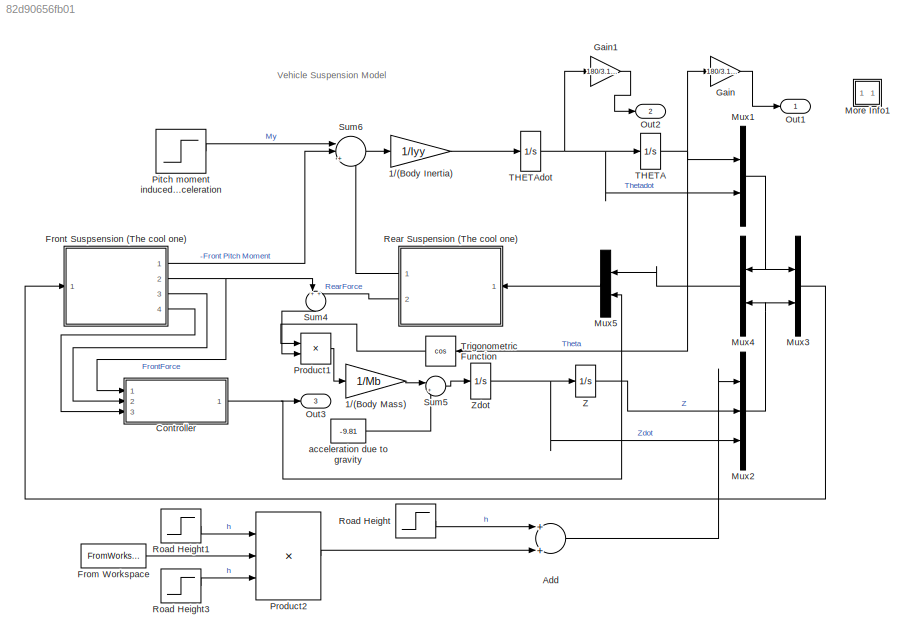
MODEL slx_82d90656fb01
KIND model
CONFIG AbsTol = auto
CONFIG EnableMultiTasking = off
CONFIG FixedStep = 0.005
CONFIG MaxStep = auto
CONFIG MinStep = auto
CONFIG RelTol = 1e-3
CONFIG SampleTimeConstraint = Unconstrained
CONFIG Solver = FixedStepAuto
CONFIG SolverName = FixedStepAuto
CONFIG StartTime = 0.0
CONFIG StopFcn = Project_Simulink_Plotz_April15
CONFIG StopTime = 6
BLOCK [Gain] 1//(Body Inertia)
  Gain = 1/Iyy
BLOCK [Gain] 1//(Body Mass)
  Gain = 1/Mb
BLOCK [Sum] Add
  InputSameDT = off
  OutDataTypeStr = Inherit: Inherit via internal rule
  Ports = [2, 1]
  SaturateOnIntegerOverflow = off
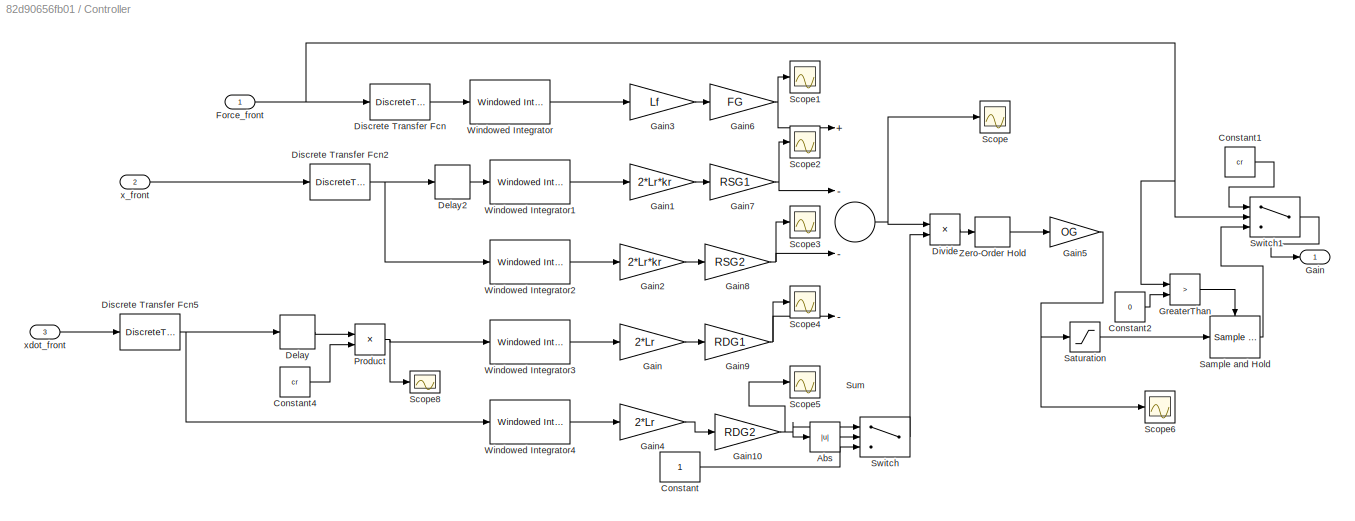
BLOCK [SubSystem] Controller
  Ports = [3, 1]
  RequestExecContextInheritance = off
BLOCK [Abs] Controller/Abs
  SaturateOnIntegerOverflow = off
BLOCK [Constant] Controller/Constant
BLOCK [Constant] Controller/Constant1
  Value = cr
BLOCK [Constant] Controller/Constant2
  Value = 0
BLOCK [Constant] Controller/Constant4
  Value = cr
BLOCK [Delay] Controller/Delay
  DelayLength = floor(L/(Ts*V))
  InputPortMap = u0
  Ports = [1, 1]
  SampleTime = Ts
BLOCK [Delay] Controller/Delay2
  DelayLength = floor(L/(Ts*V))
  InputPortMap = u0
  Ports = [1, 1]
  SampleTime = Ts
BLOCK [DiscreteTransferFcn] Controller/Discrete Transfer Fcn
  Denominator = [1]
  InputPortMap = u0
  Ports = [1, 1]
  SampleTime = Ts
BLOCK [DiscreteTransferFcn] Controller/Discrete Transfer Fcn2
  Denominator = [1]
  InputPortMap = u0
  Ports = [1, 1]
  SampleTime = Ts
BLOCK [DiscreteTransferFcn] Controller/Discrete Transfer Fcn5
  Denominator = [1]
  InputPortMap = u0
  Ports = [1, 1]
  SampleTime = Ts
BLOCK [Product] Controller/Divide
  InputSameDT = off
  Inputs = */
  OutDataTypeStr = Inherit: Inherit via internal rule
  Ports = [2, 1]
  RndMeth = Floor
  SaturateOnIntegerOverflow = off
BLOCK [Inport] Controller/Force_front
  IconDisplay = Port number
BLOCK [Gain] Controller/Gain
  Gain = 2*Lr
  OutDataTypeStr = Inherit: Inherit via internal rule
  ParamDataTypeStr = Inherit: Inherit via internal rule
  SaturateOnIntegerOverflow = off
BLOCK [Outport] Controller/Gain 
  IconDisplay = Port number
BLOCK [Gain] Controller/Gain1
  Gain = 2*Lr*kr
  OutDataTypeStr = Inherit: Inherit via internal rule
  ParamDataTypeStr = Inherit: Inherit via internal rule
  SaturateOnIntegerOverflow = off
BLOCK [Gain] Controller/Gain10
  Gain = RDG2
  OutDataTypeStr = Inherit: Inherit via internal rule
  ParamDataTypeStr = Inherit: Inherit via internal rule
  SaturateOnIntegerOverflow = off
BLOCK [Gain] Controller/Gain2
  Gain = 2*Lr*kr
  OutDataTypeStr = Inherit: Inherit via internal rule
  ParamDataTypeStr = Inherit: Inherit via internal rule
  SaturateOnIntegerOverflow = off
BLOCK [Gain] Controller/Gain3
  Gain = Lf
  OutDataTypeStr = Inherit: Inherit via internal rule
  ParamDataTypeStr = Inherit: Inherit via internal rule
  SaturateOnIntegerOverflow = off
BLOCK [Gain] Controller/Gain4
  Gain = 2*Lr
  OutDataTypeStr = Inherit: Inherit via internal rule
  ParamDataTypeStr = Inherit: Inherit via internal rule
  SaturateOnIntegerOverflow = off
BLOCK [Gain] Controller/Gain5
  Gain = OG
  OutDataTypeStr = Inherit: Inherit via internal rule
  ParamDataTypeStr = Inherit: Inherit via internal rule
  SaturateOnIntegerOverflow = off
BLOCK [Gain] Controller/Gain6
  Gain = FG
  OutDataTypeStr = Inherit: Inherit via internal rule
  ParamDataTypeStr = Inherit: Inherit via internal rule
  SaturateOnIntegerOverflow = off
BLOCK [Gain] Controller/Gain7
  Gain = RSG1
  OutDataTypeStr = Inherit: Inherit via internal rule
  ParamDataTypeStr = Inherit: Inherit via internal rule
  SaturateOnIntegerOverflow = off
BLOCK [Gain] Controller/Gain8
  Gain = RSG2
  OutDataTypeStr = Inherit: Inherit via internal rule
  ParamDataTypeStr = Inherit: Inherit via internal rule
  SaturateOnIntegerOverflow = off
BLOCK [Gain] Controller/Gain9
  Gain = RDG1
  OutDataTypeStr = Inherit: Inherit via internal rule
  ParamDataTypeStr = Inherit: Inherit via internal rule
  SaturateOnIntegerOverflow = off
BLOCK [RelationalOperator] Controller/GreaterThan
  InputSameDT = off
  Operator = >
  OutDataTypeStr = boolean
  Ports = [2, 1]
  RndMeth = Simplest
BLOCK [Product] Controller/Product
  InputSameDT = off
  OutDataTypeStr = Inherit: Inherit via internal rule
  Ports = [2, 1]
  RndMeth = Floor
  SaturateOnIntegerOverflow = off
BLOCK [Reference] Controller/Sample and Hold  REF=dspsigops/Sample
and Hold
  Ports = [1, 1, 0, 1]
  SourceBlock = dspsigops/Sample\nand Hold
  SourceProductBaseCode = DS
  SourceProductName = DSP System Toolbox
  SourceType = Sample and Hold
BLOCK [Saturate] Controller/Saturation
  InputPortMap = u0
  LowerLimit = 750
  Ports = [1, 1]
  UpperLimit = 750
BLOCK [Scope] Controller/Scope
  Floating = off
  NumInputPorts = 1
  Ports = [1]
  ScopeSpecificationString = Simulink.scopes.TimeScopeBlockCfg('CurrentConfiguration', extmgr.ConfigurationSet(extmgr.Configuration('Core','General UI',true),extmgr.Configuration('Core','Source UI',true),extmgr.Configuration('Sources','WiredSimulink',true,'DataLoggingVariableName','ScopeData1'),extmgr.Configuration('Visuals','Time Domain',true,'SerializedDisplays',{struct('MinYLimReal','-294175.10053','MaxYLimReal','244477.63...<+1429ch>
BLOCK [Scope] Controller/Scope1
  Floating = off
  NumInputPorts = 1
  Ports = [1]
  ScopeSpecificationString = Simulink.scopes.TimeScopeBlockCfg('CurrentConfiguration', extmgr.ConfigurationSet(extmgr.Configuration('Core','General UI',true),extmgr.Configuration('Core','Source UI',true),extmgr.Configuration('Sources','WiredSimulink',true,'DataLoggingVariableName','ScopeData1'),extmgr.Configuration('Visuals','Time Domain',true,'SerializedDisplays',{struct('MinYLimReal','-37143.39112','MaxYLimReal','334290.520...<+1428ch>
BLOCK [Scope] Controller/Scope2
  Floating = off
  NumInputPorts = 1
  Ports = [1]
  ScopeSpecificationString = Simulink.scopes.TimeScopeBlockCfg('CurrentConfiguration', extmgr.ConfigurationSet(extmgr.Configuration('Core','General UI',true),extmgr.Configuration('Core','Source UI',true),extmgr.Configuration('Sources','WiredSimulink',true,'DataLoggingVariableName','ScopeData2'),extmgr.Configuration('Visuals','Time Domain',true,'SerializedDisplays',{struct('MinYLimReal','-19367.81493','MaxYLimReal','174310.334...<+1428ch>
BLOCK [Scope] Controller/Scope3
  Floating = off
  NumInputPorts = 1
  Ports = [1]
  ScopeSpecificationString = Simulink.scopes.TimeScopeBlockCfg('CurrentConfiguration', extmgr.ConfigurationSet(extmgr.Configuration('Core','General UI',true),extmgr.Configuration('Core','Source UI',true),extmgr.Configuration('Sources','WiredSimulink',true,'DataLoggingVariableName','ScopeData3'),extmgr.Configuration('Visuals','Time Domain',true,'SerializedDisplays',{struct('MinYLimReal','-19367.81493','MaxYLimReal','174310.334...<+1428ch>
BLOCK [Scope] Controller/Scope4
  Floating = off
  NumInputPorts = 1
  Ports = [1]
  ScopeSpecificationString = Simulink.scopes.TimeScopeBlockCfg('CurrentConfiguration', extmgr.ConfigurationSet(extmgr.Configuration('Core','General UI',true),extmgr.Configuration('Core','Source UI',true),extmgr.Configuration('Sources','WiredSimulink',true,'DataLoggingVariableName','ScopeData4'),extmgr.Configuration('Visuals','Time Domain',true,'SerializedDisplays',{struct('MinYLimReal','-48928.34129','MaxYLimReal','88455.0715...<+1425ch>
BLOCK [Scope] Controller/Scope5
  Floating = off
  NumInputPorts = 1
  Ports = [1]
  ScopeSpecificationString = Simulink.scopes.TimeScopeBlockCfg('CurrentConfiguration', extmgr.ConfigurationSet(extmgr.Configuration('Core','General UI',true),extmgr.Configuration('Core','Source UI',true),extmgr.Configuration('Sources','WiredSimulink',true,'DataLoggingVariableName','ScopeData5'),extmgr.Configuration('Visuals','Time Domain',true,'SerializedDisplays',{struct('MinYLimReal','-163.09447','MaxYLimReal','294.85024','...<+1410ch>
BLOCK [Scope] Controller/Scope6
  Floating = off
  NumInputPorts = 1
  Ports = [1]
  ScopeSpecificationString = Simulink.scopes.TimeScopeBlockCfg('CurrentConfiguration', extmgr.ConfigurationSet(extmgr.Configuration('Core','General UI',true),extmgr.Configuration('Core','Source UI',true),extmgr.Configuration('Sources','WiredSimulink',true,'DataLoggingVariableName','ScopeData6'),extmgr.Configuration('Visuals','Time Domain',true),extmgr.Configuration('Tools','Plot Navigation',true),extmgr.Configuration('Tools',...<+40ch>
BLOCK [Scope] Controller/Scope8
  Floating = off
  NumInputPorts = 1
  Ports = [1]
  ScopeSpecificationString = Simulink.scopes.TimeScopeBlockCfg('CurrentConfiguration', extmgr.ConfigurationSet(extmgr.Configuration('Core','General UI',true),extmgr.Configuration('Core','Source UI',true),extmgr.Configuration('Sources','WiredSimulink',true,'DataLoggingVariableName','ScopeData4'),extmgr.Configuration('Visuals','Time Domain',true,'SerializedDisplays',{struct('MinYLimReal','-4090.27016','MaxYLimReal','4007.1436',...<+1416ch>
BLOCK [Sum] Controller/Sum
  InputSameDT = off
  Inputs = +---
  OutDataTypeStr = Inherit: Inherit via internal rule
  Ports = [4, 1]
  SaturateOnIntegerOverflow = off
BLOCK [Switch] Controller/Switch
  Criteria = u2 > Threshold
  InputSameDT = off
  SaturateOnIntegerOverflow = off
  Threshold = 1
BLOCK [Switch] Controller/Switch1
  Criteria = u2 > Threshold
  InputSameDT = off
  SaturateOnIntegerOverflow = off
BLOCK [Reference] Controller/Windowed Integrator  REF=commfilt2/Windowed
Integrator
  Ports = [1, 1]
  SourceBlock = commfilt2/Windowed\nIntegrator
  SourceProductBaseCode = CM
  SourceProductName = Communications Toolbox
  SourceType = Windowed Integrator
  UserDataPersistent = on
BLOCK [Reference] Controller/Windowed Integrator1  REF=commfilt2/Windowed
Integrator
  Ports = [1, 1]
  SourceBlock = commfilt2/Windowed\nIntegrator
  SourceProductBaseCode = CM
  SourceProductName = Communications Toolbox
  SourceType = Windowed Integrator
  UserDataPersistent = on
BLOCK [Reference] Controller/Windowed Integrator2  REF=commfilt2/Windowed
Integrator
  Ports = [1, 1]
  SourceBlock = commfilt2/Windowed\nIntegrator
  SourceProductBaseCode = CM
  SourceProductName = Communications Toolbox
  SourceType = Windowed Integrator
  UserDataPersistent = on
BLOCK [Reference] Controller/Windowed Integrator3  REF=commfilt2/Windowed
Integrator
  Ports = [1, 1]
  SourceBlock = commfilt2/Windowed\nIntegrator
  SourceProductBaseCode = CM
  SourceProductName = Communications Toolbox
  SourceType = Windowed Integrator
  UserDataPersistent = on
BLOCK [Reference] Controller/Windowed Integrator4  REF=commfilt2/Windowed
Integrator
  Ports = [1, 1]
  SourceBlock = commfilt2/Windowed\nIntegrator
  SourceProductBaseCode = CM
  SourceProductName = Communications Toolbox
  SourceType = Windowed Integrator
  UserDataPersistent = on
BLOCK [ZeroOrderHold] Controller/Zero-Order Hold
  SampleTime = Ts
BLOCK [Inport] Controller/x_front
  IconDisplay = Port number
  Port = 2
BLOCK [Inport] Controller/xdot_front
  IconDisplay = Port number
  Port = 3
BLOCK [FromWorkspace] From Workspace
  OutputAfterFinalValue = Holding final value
  VariableName = RampMat
  ZeroCross = on
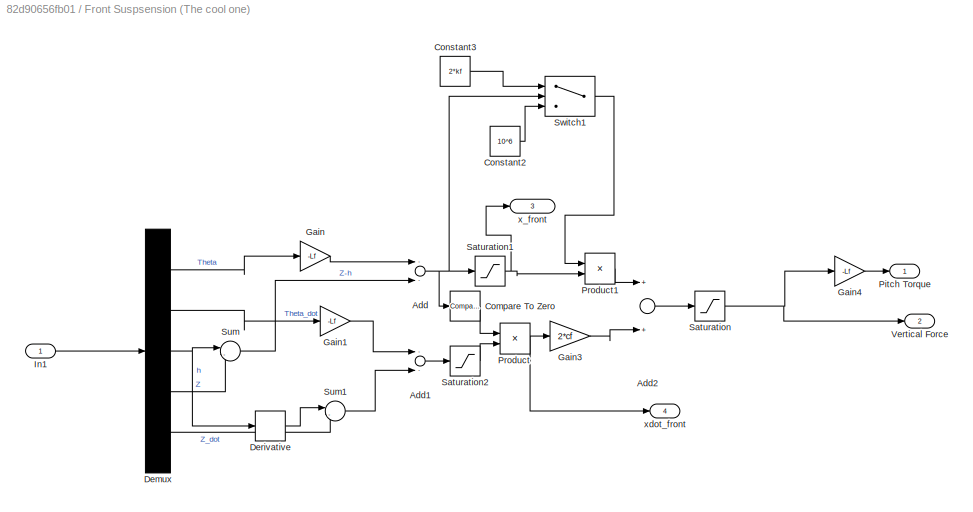
BLOCK [SubSystem] Front Suspsension (The cool one)
  Ports = [1, 4]
  RequestExecContextInheritance = off
BLOCK [Sum] Front Suspsension (The cool one)/Add
  InputSameDT = off
  Inputs = --
  OutDataTypeStr = Inherit: Inherit via internal rule
  Ports = [2, 1]
  SaturateOnIntegerOverflow = off
BLOCK [Sum] Front Suspsension (The cool one)/Add1
  InputSameDT = off
  Inputs = --
  OutDataTypeStr = Inherit: Inherit via internal rule
  Ports = [2, 1]
  SaturateOnIntegerOverflow = off
BLOCK [Sum] Front Suspsension (The cool one)/Add2
  InputSameDT = off
  OutDataTypeStr = Inherit: Inherit via internal rule
  Ports = [2, 1]
  SaturateOnIntegerOverflow = off
BLOCK [Reference] Front Suspsension (The cool one)/Compare To Zero  REF=simulink/Logic and Bit
Operations/Compare
To Zero
  Ports = [1, 1]
  SourceBlock = simulink/Logic and Bit\nOperations/Compare\nTo Zero
  SourceProductBaseCode = SL
  SourceProductName = Simulink
  SourceType = Compare To Zero
BLOCK [Constant] Front Suspsension (The cool one)/Constant2
  Value = 10^6
BLOCK [Constant] Front Suspsension (The cool one)/Constant3
  Value = 2*kf
BLOCK [Demux] Front Suspsension (The cool one)/Demux
  DisplayOption = bar
  Outputs = 5
  Ports = [1, 5]
BLOCK [Derivative] Front Suspsension (The cool one)/Derivative
BLOCK [Gain] Front Suspsension (The cool one)/Gain
  Gain = -Lf
  OutDataTypeStr = Inherit: Inherit via internal rule
  ParamDataTypeStr = Inherit: Inherit via internal rule
  SaturateOnIntegerOverflow = off
BLOCK [Gain] Front Suspsension (The cool one)/Gain1
  Gain = -Lf
  OutDataTypeStr = Inherit: Inherit via internal rule
  ParamDataTypeStr = Inherit: Inherit via internal rule
  SaturateOnIntegerOverflow = off
BLOCK [Gain] Front Suspsension (The cool one)/Gain3
  Gain = 2*cf
  OutDataTypeStr = Inherit: Inherit via internal rule
  ParamDataTypeStr = Inherit: Inherit via internal rule
  SaturateOnIntegerOverflow = off
BLOCK [Gain] Front Suspsension (The cool one)/Gain4
  Gain = -Lf
  OutDataTypeStr = Inherit: Inherit via internal rule
  ParamDataTypeStr = Inherit: Inherit via internal rule
  SaturateOnIntegerOverflow = off
BLOCK [Inport] Front Suspsension (The cool one)/In1
  IconDisplay = Port number
BLOCK [Outport] Front Suspsension (The cool one)/Pitch Torque
  IconDisplay = Port number
  VectorParamsAs1DForOutWhenUnconnected = off
BLOCK [Product] Front Suspsension (The cool one)/Product
  InputSameDT = off
  OutDataTypeStr = Inherit: Inherit via internal rule
  Ports = [2, 1]
  RndMeth = Floor
  SaturateOnIntegerOverflow = off
BLOCK [Product] Front Suspsension (The cool one)/Product1
  InputSameDT = off
  OutDataTypeStr = Inherit: Inherit via internal rule
  Ports = [2, 1]
  RndMeth = Floor
  SaturateOnIntegerOverflow = off
BLOCK [Saturate] Front Suspsension (The cool one)/Saturation
  InputPortMap = u0
  LowerLimit = 0
  Ports = [1, 1]
  UpperLimit = inf
BLOCK [Saturate] Front Suspsension (The cool one)/Saturation1
  InputPortMap = u0
  LowerLimit = 0
  Ports = [1, 1]
  UpperLimit = inf
BLOCK [Saturate] Front Suspsension (The cool one)/Saturation2
  InputPortMap = u0
  LowerLimit = -5
  Ports = [1, 1]
  UpperLimit = inf
BLOCK [Sum] Front Suspsension (The cool one)/Sum
  IconShape = round
  InputSameDT = off
  Inputs = |-+
  OutDataTypeStr = Inherit: Inherit via internal rule
  Ports = [2, 1]
  SaturateOnIntegerOverflow = off
BLOCK [Sum] Front Suspsension (The cool one)/Sum1
  IconShape = round
  InputSameDT = off
  Inputs = |-+
  OutDataTypeStr = Inherit: Inherit via internal rule
  Ports = [2, 1]
  SaturateOnIntegerOverflow = off
BLOCK [Switch] Front Suspsension (The cool one)/Switch1
  Criteria = u2 > Threshold
  InputSameDT = off
  SaturateOnIntegerOverflow = off
  Threshold = -0.4
BLOCK [Outport] Front Suspsension (The cool one)/Vertical Force
  IconDisplay = Port number
  Port = 2
  VectorParamsAs1DForOutWhenUnconnected = off
BLOCK [Outport] Front Suspsension (The cool one)/x_front
  IconDisplay = Port number
  Port = 3
  VectorParamsAs1DForOutWhenUnconnected = off
BLOCK [Outport] Front Suspsension (The cool one)/xdot_front
  IconDisplay = Port number
  Port = 4
  VectorParamsAs1DForOutWhenUnconnected = off
BLOCK [Gain] Gain
  Gain = 180/3.1415
  OutDataTypeStr = Inherit: Inherit via internal rule
  ParamDataTypeStr = Inherit: Inherit via internal rule
  SaturateOnIntegerOverflow = off
BLOCK [Gain] Gain1
  Gain = 180/3.1415
  OutDataTypeStr = Inherit: Inherit via internal rule
  ParamDataTypeStr = Inherit: Inherit via internal rule
  SaturateOnIntegerOverflow = off
BLOCK [SubSystem] More Info1
  OpenFcn = showdemo(bdroot(gcb))
  Ports = []
  RequestExecContextInheritance = off
BLOCK [Mux] Mux1
  DisplayOption = signals
  Inputs = 2
  Ports = [2, 1]
BLOCK [Mux] Mux2
  DisplayOption = signals
  Inputs = 3
  Ports = [3, 1]
BLOCK [Mux] Mux3
  DisplayOption = signals
  Inputs = 2
  Ports = [2, 1]
BLOCK [Mux] Mux4
  DisplayOption = signals
  Inputs = 2
  Ports = [2, 1]
BLOCK [Mux] Mux5
  DisplayOption = signals
  Inputs = 2
  Ports = [2, 1]
BLOCK [Outport] Out1
  IconDisplay = Port number
BLOCK [Outport] Out2
  IconDisplay = Port number
  Port = 2
BLOCK [Outport] Out3
  IconDisplay = Port number
  Port = 3
BLOCK [Step] Pitch moment induced by vehicle acceleration
  After = 0
  SampleTime = 0
  Time = 3
BLOCK [Product] Product1
  InputSameDT = off
  OutDataTypeStr = Inherit: Inherit via internal rule
  Ports = [2, 1]
  RndMeth = Floor
  SaturateOnIntegerOverflow = off
BLOCK [Product] Product2
  InputSameDT = off
  Inputs = 3
  OutDataTypeStr = Inherit: Inherit via internal rule
  Ports = [3, 1]
  RndMeth = Floor
  SaturateOnIntegerOverflow = off
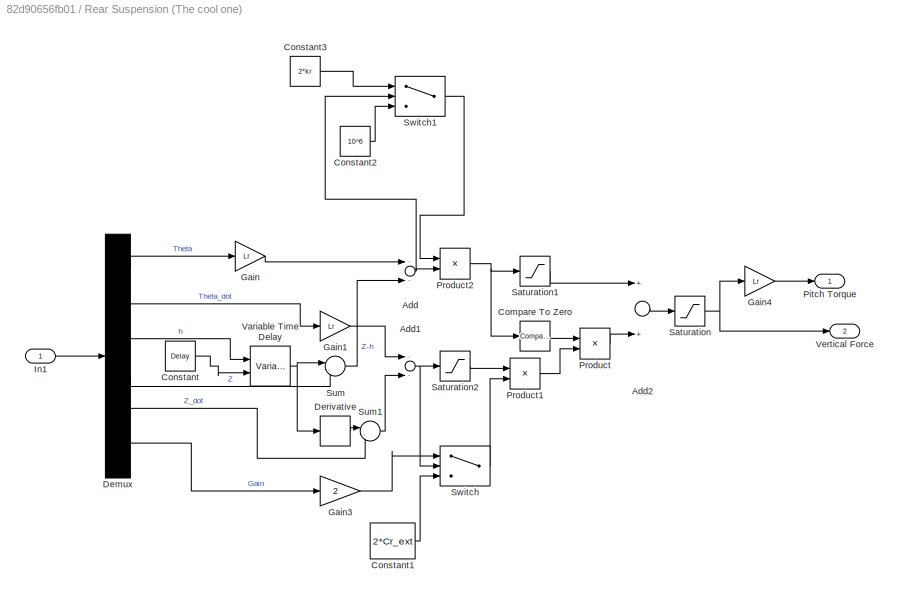
BLOCK [SubSystem] Rear Suspension (The cool one)
  Ports = [1, 2]
  RequestExecContextInheritance = off
BLOCK [Sum] Rear Suspension (The cool one)/Add
  InputSameDT = off
  Inputs = --
  OutDataTypeStr = Inherit: Inherit via internal rule
  Ports = [2, 1]
  SaturateOnIntegerOverflow = off
BLOCK [Sum] Rear Suspension (The cool one)/Add1
  InputSameDT = off
  Inputs = --
  OutDataTypeStr = Inherit: Inherit via internal rule
  Ports = [2, 1]
  SaturateOnIntegerOverflow = off
BLOCK [Sum] Rear Suspension (The cool one)/Add2
  InputSameDT = off
  OutDataTypeStr = Inherit: Inherit via internal rule
  Ports = [2, 1]
  SaturateOnIntegerOverflow = off
BLOCK [Reference] Rear Suspension (The cool one)/Compare To Zero  REF=simulink/Logic and Bit
Operations/Compare
To Zero
  Ports = [1, 1]
  SourceBlock = simulink/Logic and Bit\nOperations/Compare\nTo Zero
  SourceProductBaseCode = SL
  SourceProductName = Simulink
  SourceType = Compare To Zero
BLOCK [Constant] Rear Suspension (The cool one)/Constant
  Value = Delay
BLOCK [Constant] Rear Suspension (The cool one)/Constant1
  Value = 2*Cr_ext
BLOCK [Constant] Rear Suspension (The cool one)/Constant2
  Value = 10^6
BLOCK [Constant] Rear Suspension (The cool one)/Constant3
  Value = 2*kr
BLOCK [Demux] Rear Suspension (The cool one)/Demux
  DisplayOption = bar
  Outputs = 6
  Ports = [1, 6]
BLOCK [Derivative] Rear Suspension (The cool one)/Derivative
BLOCK [Gain] Rear Suspension (The cool one)/Gain
  Gain = Lr
  OutDataTypeStr = Inherit: Inherit via internal rule
  ParamDataTypeStr = Inherit: Inherit via internal rule
  SaturateOnIntegerOverflow = off
BLOCK [Gain] Rear Suspension (The cool one)/Gain1
  Gain = Lr
  OutDataTypeStr = Inherit: Inherit via internal rule
  ParamDataTypeStr = Inherit: Inherit via internal rule
  SaturateOnIntegerOverflow = off
BLOCK [Gain] Rear Suspension (The cool one)/Gain3
  Gain = 2
  OutDataTypeStr = Inherit: Inherit via internal rule
  ParamDataTypeStr = Inherit: Inherit via internal rule
  SaturateOnIntegerOverflow = off
BLOCK [Gain] Rear Suspension (The cool one)/Gain4
  Gain = Lr
  OutDataTypeStr = Inherit: Inherit via internal rule
  ParamDataTypeStr = Inherit: Inherit via internal rule
  SaturateOnIntegerOverflow = off
BLOCK [Inport] Rear Suspension (The cool one)/In1
  IconDisplay = Port number
BLOCK [Outport] Rear Suspension (The cool one)/Pitch Torque
  IconDisplay = Port number
  VectorParamsAs1DForOutWhenUnconnected = off
BLOCK [Product] Rear Suspension (The cool one)/Product
  InputSameDT = off
  OutDataTypeStr = Inherit: Inherit via internal rule
  Ports = [2, 1]
  RndMeth = Floor
  SaturateOnIntegerOverflow = off
BLOCK [Product] Rear Suspension (The cool one)/Product1
  InputSameDT = off
  OutDataTypeStr = Inherit: Inherit via internal rule
  Ports = [2, 1]
  RndMeth = Floor
  SaturateOnIntegerOverflow = off
BLOCK [Product] Rear Suspension (The cool one)/Product2
  InputSameDT = off
  OutDataTypeStr = Inherit: Inherit via internal rule
  Ports = [2, 1]
  RndMeth = Floor
  SaturateOnIntegerOverflow = off
BLOCK [Saturate] Rear Suspension (The cool one)/Saturation
  InputPortMap = u0
  LowerLimit = 0
  Ports = [1, 1]
  UpperLimit = inf
BLOCK [Saturate] Rear Suspension (The cool one)/Saturation1
  InputPortMap = u0
  LowerLimit = 0
  Ports = [1, 1]
  UpperLimit = inf
BLOCK [Saturate] Rear Suspension (The cool one)/Saturation2
  InputPortMap = u0
  LowerLimit = -5
  Ports = [1, 1]
  UpperLimit = inf
BLOCK [Sum] Rear Suspension (The cool one)/Sum
  IconShape = round
  InputSameDT = off
  Inputs = |-+
  OutDataTypeStr = Inherit: Inherit via internal rule
  Ports = [2, 1]
  SaturateOnIntegerOverflow = off
BLOCK [Sum] Rear Suspension (The cool one)/Sum1
  IconShape = round
  InputSameDT = off
  Inputs = |-+
  OutDataTypeStr = Inherit: Inherit via internal rule
  Ports = [2, 1]
  SaturateOnIntegerOverflow = off
BLOCK [Switch] Rear Suspension (The cool one)/Switch
  Criteria = u2 > Threshold
  InputSameDT = off
  SaturateOnIntegerOverflow = off
BLOCK [Switch] Rear Suspension (The cool one)/Switch1
  Criteria = u2 > Threshold
  InputSameDT = off
  SaturateOnIntegerOverflow = off
  Threshold = -0.4
BLOCK [VariableTransportDelay] Rear Suspension (The cool one)/Variable Time Delay
  MaximumDelay = 10
  Ports = [2, 1]
BLOCK [Outport] Rear Suspension (The cool one)/Vertical Force
  IconDisplay = Port number
  Port = 2
  VectorParamsAs1DForOutWhenUnconnected = off
BLOCK [Step] Road Height
  After = 0
  SampleTime = 0
  Time = 0
BLOCK [Step] Road Height1
  SampleTime = 0
  Time = RampStart
BLOCK [Step] Road Height3
  After = 0
  Before = 1
  SampleTime = 0
  Time = RampEnd
BLOCK [Sum] Sum4
  IconShape = round
  Ports = [2, 1]
BLOCK [Sum] Sum5
  IconShape = round
  Inputs = |++
  Ports = [2, 1]
BLOCK [Sum] Sum6
  IconShape = round
  Inputs = ||+++
  Ports = [3, 1]
BLOCK [Integrator] THETA
  InitialCondition = 5*3.1415/180
  Ports = [1, 1]
BLOCK [Integrator] THETAdot
  InitialCondition = 8.04e-28
  Ports = [1, 1]
BLOCK [Trigonometry] Trigonometric Function
  Operator = cos
  Ports = [1, 1]
BLOCK [Integrator] Z
  InitialCondition = -0.12
  Ports = [1, 1]
BLOCK [Integrator] Zdot
  Ports = [1, 1]
BLOCK [Constant] acceleration due to gravity
  Value = -9.81
ANNOTATION (root): Vehicle Suspension Model
LINE 1//(Body Inertia):1 -> THETAdot:1
LINE 1//(Body Mass):1 -> Sum5:1
LINE Add:1 -> Mux2:1
LINE Controller/Abs:1 -> Controller/Switch:2
LINE Controller/Constant1:1 -> Controller/Switch1:1
LINE Controller/Constant2:1 -> Controller/GreaterThan:2
LINE Controller/Constant4:1 -> Controller/Product:2
LINE Controller/Constant:1 -> Controller/Switch:3
LINE Controller/Delay2:1 -> Controller/Windowed Integrator1:1
LINE Controller/Delay:1 -> Controller/Product:1
NET Controller/Discrete Transfer Fcn2:1 -> Controller/Delay2:1, Controller/Windowed Integrator2:1
NET Controller/Discrete Transfer Fcn5:1 -> Controller/Delay:1, Controller/Windowed Integrator4:1
LINE Controller/Discrete Transfer Fcn:1 -> Controller/Windowed Integrator:1
LINE Controller/Divide:1 -> Controller/Zero-Order Hold:1
NET Controller/Force_front:1 -> Controller/Discrete Transfer Fcn:1, Controller/GreaterThan:1, Controller/Switch1:2
NET Controller/Gain10:1 -> Controller/Abs:1, Controller/Scope5:1, Controller/Switch:1
LINE Controller/Gain1:1 -> Controller/Gain7:1
LINE Controller/Gain2:1 -> Controller/Gain8:1
LINE Controller/Gain3:1 -> Controller/Gain6:1
LINE Controller/Gain4:1 -> Controller/Gain10:1
NET Controller/Gain5:1 -> Controller/Saturation:1, Controller/Scope6:1
NET Controller/Gain6:1 -> Controller/Scope1:1, Controller/Sum:1
NET Controller/Gain7:1 -> Controller/Scope2:1, Controller/Sum:2
NET Controller/Gain8:1 -> Controller/Scope3:1, Controller/Sum:3
NET Controller/Gain9:1 -> Controller/Scope4:1, Controller/Sum:4
LINE Controller/Gain:1 -> Controller/Gain9:1
LINE Controller/GreaterThan:1 -> Controller/Sample and Hold:trigger
NET Controller/Product:1 -> Controller/Scope8:1, Controller/Windowed Integrator3:1
LINE Controller/Sample and Hold:1 -> Controller/Switch1:3
LINE Controller/Saturation:1 -> Controller/Sample and Hold:1
NET Controller/Sum:1 -> Controller/Divide:1, Controller/Scope:1
LINE Controller/Switch1:1 -> Controller/Gain :1
LINE Controller/Switch:1 -> Controller/Divide:2
LINE Controller/Windowed Integrator1:1 -> Controller/Gain1:1
LINE Controller/Windowed Integrator2:1 -> Controller/Gain2:1
LINE Controller/Windowed Integrator3:1 -> Controller/Gain:1
LINE Controller/Windowed Integrator4:1 -> Controller/Gain4:1
LINE Controller/Windowed Integrator:1 -> Controller/Gain3:1
LINE Controller/Zero-Order Hold:1 -> Controller/Gain5:1
LINE Controller/x_front:1 -> Controller/Discrete Transfer Fcn2:1
LINE Controller/xdot_front:1 -> Controller/Discrete Transfer Fcn5:1
NET Controller:1 -> Mux5:2, Out3:1
LINE From Workspace:1 -> Product2:2
LINE Front Suspsension (The cool one)/Add1:1 -> Front Suspsension (The cool one)/Saturation2:1
LINE Front Suspsension (The cool one)/Add2:1 -> Front Suspsension (The cool one)/Saturation:1
NET Front Suspsension (The cool one)/Add:1 -> Front Suspsension (The cool one)/Compare To Zero:1, Front Suspsension (The cool one)/Saturation1:1, Front Suspsension (The cool one)/Switch1:2
LINE Front Suspsension (The cool one)/Compare To Zero:1 -> Front Suspsension (The cool one)/Product:1
LINE Front Suspsension (The cool one)/Constant2:1 -> Front Suspsension (The cool one)/Switch1:3
LINE Front Suspsension (The cool one)/Constant3:1 -> Front Suspsension (The cool one)/Switch1:1
LINE Front Suspsension (The cool one)/Demux:1 -> Front Suspsension (The cool one)/Gain:1
LINE Front Suspsension (The cool one)/Demux:2 -> Front Suspsension (The cool one)/Gain1:1
NET Front Suspsension (The cool one)/Demux:3 -> Front Suspsension (The cool one)/Derivative:1, Front Suspsension (The cool one)/Sum:1
LINE Front Suspsension (The cool one)/Demux:4 -> Front Suspsension (The cool one)/Sum:2
LINE Front Suspsension (The cool one)/Demux:5 -> Front Suspsension (The cool one)/Sum1:2
LINE Front Suspsension (The cool one)/Derivative:1 -> Front Suspsension (The cool one)/Sum1:1
LINE Front Suspsension (The cool one)/Gain1:1 -> Front Suspsension (The cool one)/Add1:1
LINE Front Suspsension (The cool one)/Gain3:1 -> Front Suspsension (The cool one)/Add2:2
LINE Front Suspsension (The cool one)/Gain4:1 -> Front Suspsension (The cool one)/Pitch Torque:1
LINE Front Suspsension (The cool one)/Gain:1 -> Front Suspsension (The cool one)/Add:1
LINE Front Suspsension (The cool one)/In1:1 -> Front Suspsension (The cool one)/Demux:1
LINE Front Suspsension (The cool one)/Product1:1 -> Front Suspsension (The cool one)/Add2:1
NET Front Suspsension (The cool one)/Product:1 -> Front Suspsension (The cool one)/Gain3:1, Front Suspsension (The cool one)/xdot_front:1
NET Front Suspsension (The cool one)/Saturation1:1 -> Front Suspsension (The cool one)/Product1:2, Front Suspsension (The cool one)/x_front:1
LINE Front Suspsension (The cool one)/Saturation2:1 -> Front Suspsension (The cool one)/Product:2
NET Front Suspsension (The cool one)/Saturation:1 -> Front Suspsension (The cool one)/Gain4:1, Front Suspsension (The cool one)/Vertical Force:1
LINE Front Suspsension (The cool one)/Sum1:1 -> Front Suspsension (The cool one)/Add1:2
LINE Front Suspsension (The cool one)/Sum:1 -> Front Suspsension (The cool one)/Add:2
LINE Front Suspsension (The cool one)/Switch1:1 -> Front Suspsension (The cool one)/Product1:1
LINE Front Suspsension (The cool one):1 -> Sum6:2
NET Front Suspsension (The cool one):2 -> Controller:1, Sum4:1
LINE Front Suspsension (The cool one):3 -> Controller:2
LINE Front Suspsension (The cool one):4 -> Controller:3
LINE Gain1:1 -> Out2:1
LINE Gain:1 -> Out1:1
NET Mux1:1 -> Mux3:1, Mux4:1
NET Mux2:1 -> Mux3:2, Mux4:2
LINE Mux3:1 -> Front Suspsension (The cool one):1
LINE Mux4:1 -> Mux5:1
LINE Mux5:1 -> Rear Suspension (The cool one):1
LINE Pitch moment induced by vehicle acceleration:1 -> Sum6:1
LINE Product1:1 -> 1//(Body Mass):1
LINE Product2:1 -> Add:2
NET Rear Suspension (The cool one)/Add1:1 -> Rear Suspension (The cool one)/Saturation2:1, Rear Suspension (The cool one)/Switch:2
LINE Rear Suspension (The cool one)/Add2:1 -> Rear Suspension (The cool one)/Saturation:1
NET Rear Suspension (The cool one)/Add:1 -> Rear Suspension (The cool one)/Product2:2, Rear Suspension (The cool one)/Switch1:2
LINE Rear Suspension (The cool one)/Compare To Zero:1 -> Rear Suspension (The cool one)/Product:1
LINE Rear Suspension (The cool one)/Constant1:1 -> Rear Suspension (The cool one)/Switch:3
LINE Rear Suspension (The cool one)/Constant2:1 -> Rear Suspension (The cool one)/Switch1:3
LINE Rear Suspension (The cool one)/Constant3:1 -> Rear Suspension (The cool one)/Switch1:1
LINE Rear Suspension (The cool one)/Constant:1 -> Rear Suspension (The cool one)/Variable Time Delay:2
LINE Rear Suspension (The cool one)/Demux:1 -> Rear Suspension (The cool one)/Gain:1
LINE Rear Suspension (The cool one)/Demux:2 -> Rear Suspension (The cool one)/Gain1:1
LINE Rear Suspension (The cool one)/Demux:3 -> Rear Suspension (The cool one)/Variable Time Delay:1
LINE Rear Suspension (The cool one)/Demux:4 -> Rear Suspension (The cool one)/Sum:2
LINE Rear Suspension (The cool one)/Demux:5 -> Rear Suspension (The cool one)/Sum1:2
LINE Rear Suspension (The cool one)/Demux:6 -> Rear Suspension (The cool one)/Gain3:1
LINE Rear Suspension (The cool one)/Derivative:1 -> Rear Suspension (The cool one)/Sum1:1
LINE Rear Suspension (The cool one)/Gain1:1 -> Rear Suspension (The cool one)/Add1:1
LINE Rear Suspension (The cool one)/Gain3:1 -> Rear Suspension (The cool one)/Switch:1
LINE Rear Suspension (The cool one)/Gain4:1 -> Rear Suspension (The cool one)/Pitch Torque:1
LINE Rear Suspension (The cool one)/Gain:1 -> Rear Suspension (The cool one)/Add:1
LINE Rear Suspension (The cool one)/In1:1 -> Rear Suspension (The cool one)/Demux:1
LINE Rear Suspension (The cool one)/Product1:1 -> Rear Suspension (The cool one)/Product:2
NET Rear Suspension (The cool one)/Product2:1 -> Rear Suspension (The cool one)/Compare To Zero:1, Rear Suspension (The cool one)/Saturation1:1
LINE Rear Suspension (The cool one)/Product:1 -> Rear Suspension (The cool one)/Add2:2
LINE Rear Suspension (The cool one)/Saturation1:1 -> Rear Suspension (The cool one)/Add2:1
LINE Rear Suspension (The cool one)/Saturation2:1 -> Rear Suspension (The cool one)/Product1:1
NET Rear Suspension (The cool one)/Saturation:1 -> Rear Suspension (The cool one)/Gain4:1, Rear Suspension (The cool one)/Vertical Force:1
LINE Rear Suspension (The cool one)/Sum1:1 -> Rear Suspension (The cool one)/Add1:2
LINE Rear Suspension (The cool one)/Sum:1 -> Rear Suspension (The cool one)/Add:2
LINE Rear Suspension (The cool one)/Switch1:1 -> Rear Suspension (The cool one)/Product2:1
LINE Rear Suspension (The cool one)/Switch:1 -> Rear Suspension (The cool one)/Product1:2
NET Rear Suspension (The cool one)/Variable Time Delay:1 -> Rear Suspension (The cool one)/Derivative:1, Rear Suspension (The cool one)/Sum:1
LINE Rear Suspension (The cool one):1 -> Sum6:3
LINE Rear Suspension (The cool one):2 -> Sum4:2
LINE Road Height1:1 -> Product2:1
LINE Road Height3:1 -> Product2:3
LINE Road Height:1 -> Add:1
LINE Sum4:1 -> Product1:2
LINE Sum5:1 -> Zdot:1
LINE Sum6:1 -> 1//(Body Inertia):1
NET THETA:1 -> Gain:1, Mux1:1, Trigonometric Function:1
NET THETAdot:1 -> Gain1:1, Mux1:2, THETA:1
LINE Trigonometric Function:1 -> Product1:1
LINE Z:1 -> Mux2:2
NET Zdot:1 -> Mux2:3, Z:1
LINE acceleration due to gravity:1 -> Sum5:2
note: NET lines group one-source signal fan-out (src -> all destinations, sorted); 1:1 wires keep LINE
